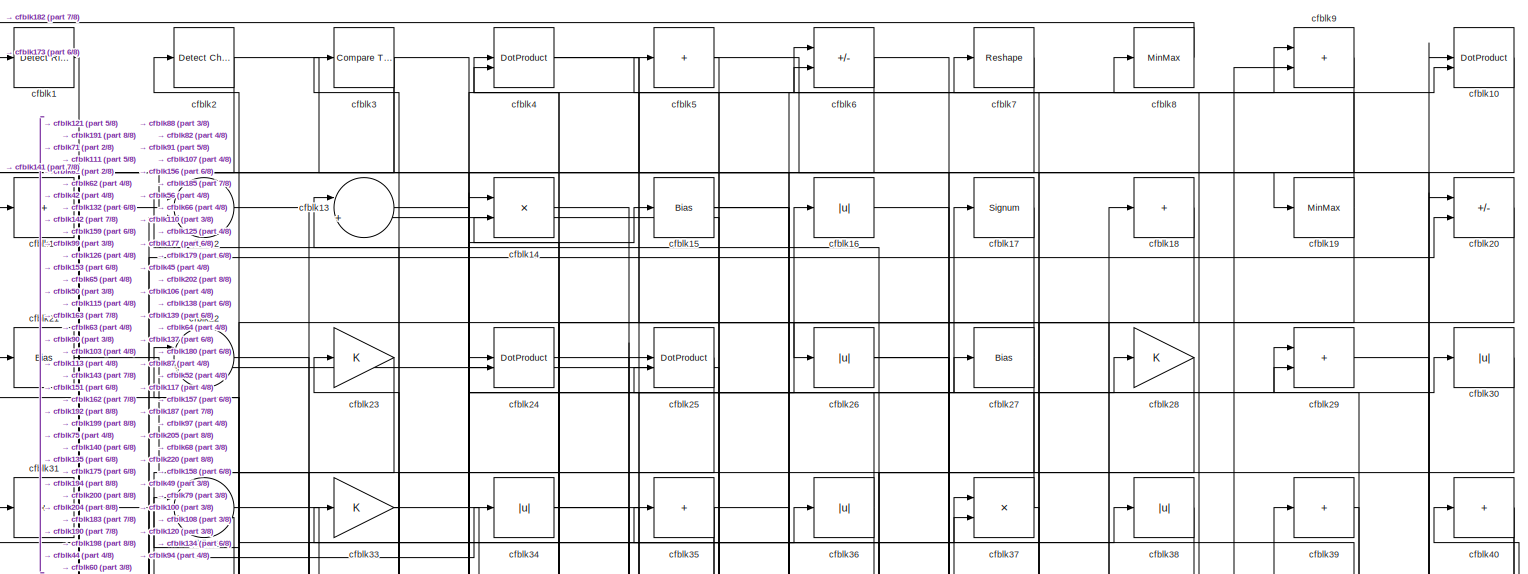
[diagram: root canvas - part 1/8, full width, top band]
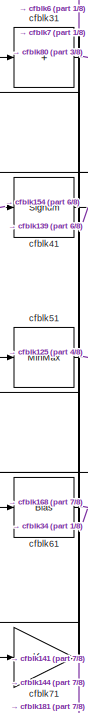
[diagram: root canvas - part 2/8, top left region]
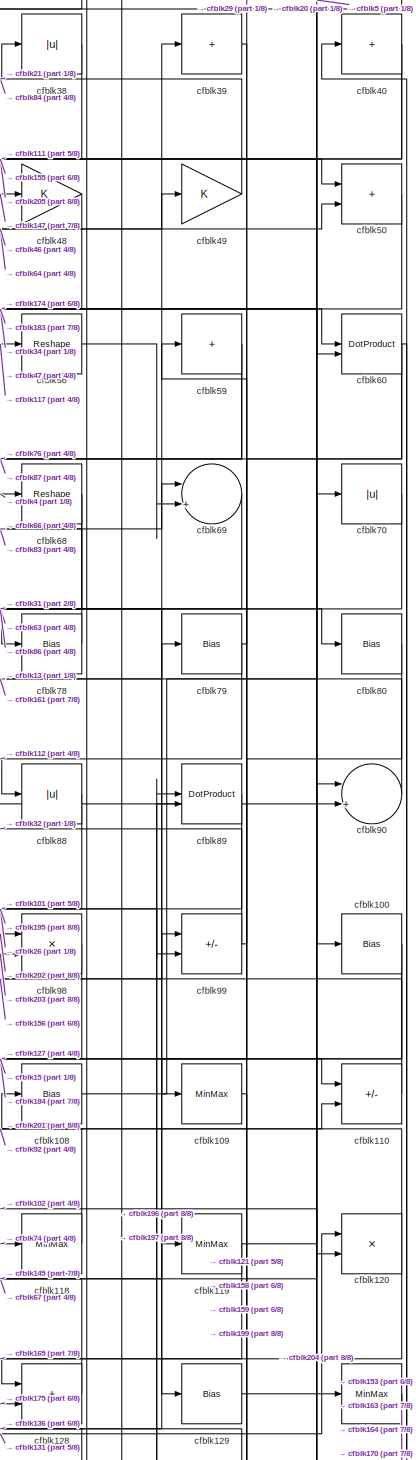
[diagram: root canvas - part 3/8, middle right region]
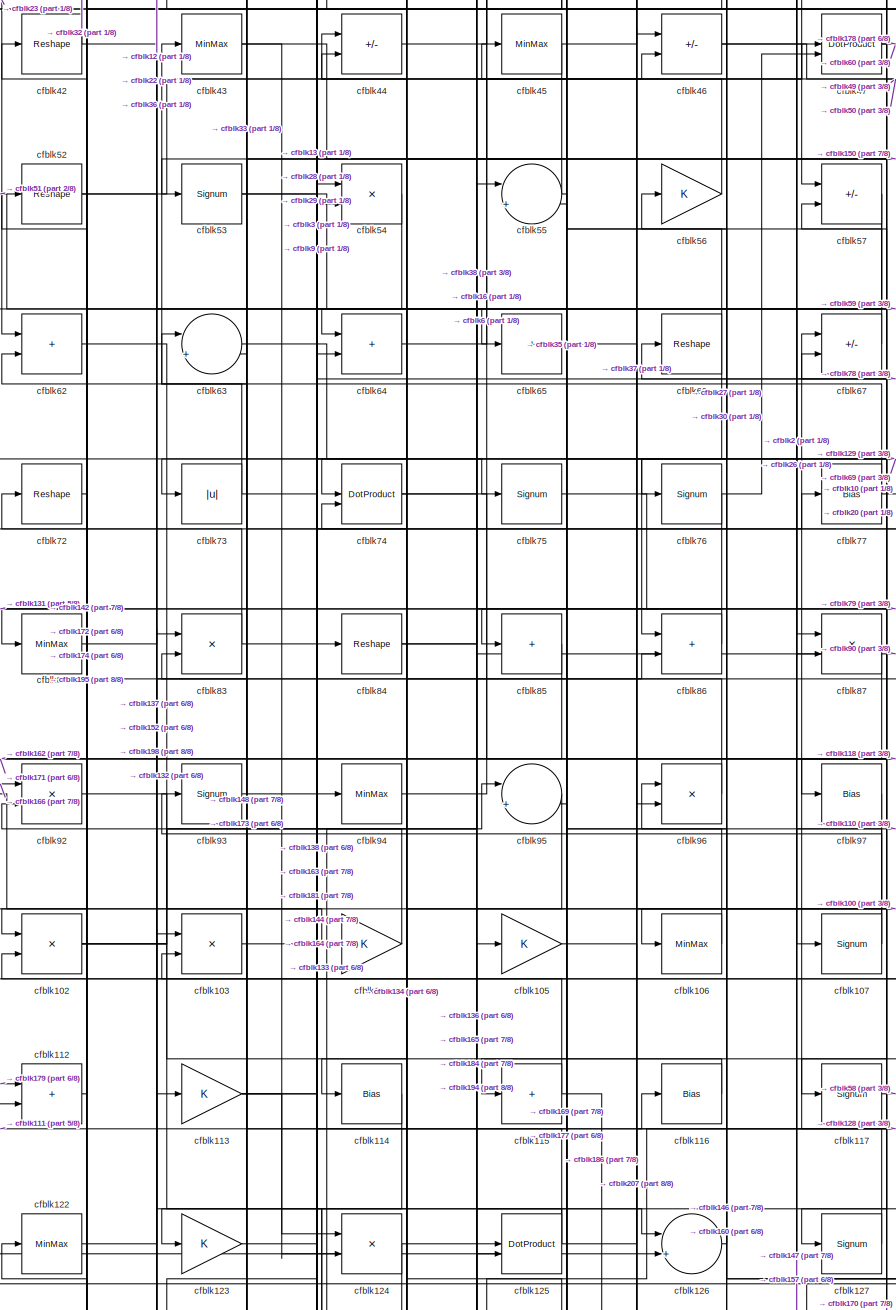
[diagram: root canvas - part 4/8, central region]
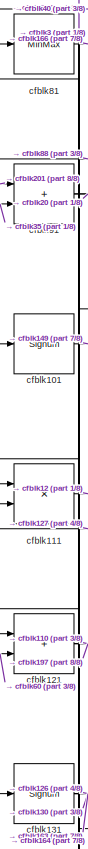
[diagram: root canvas - part 5/8, middle left region]
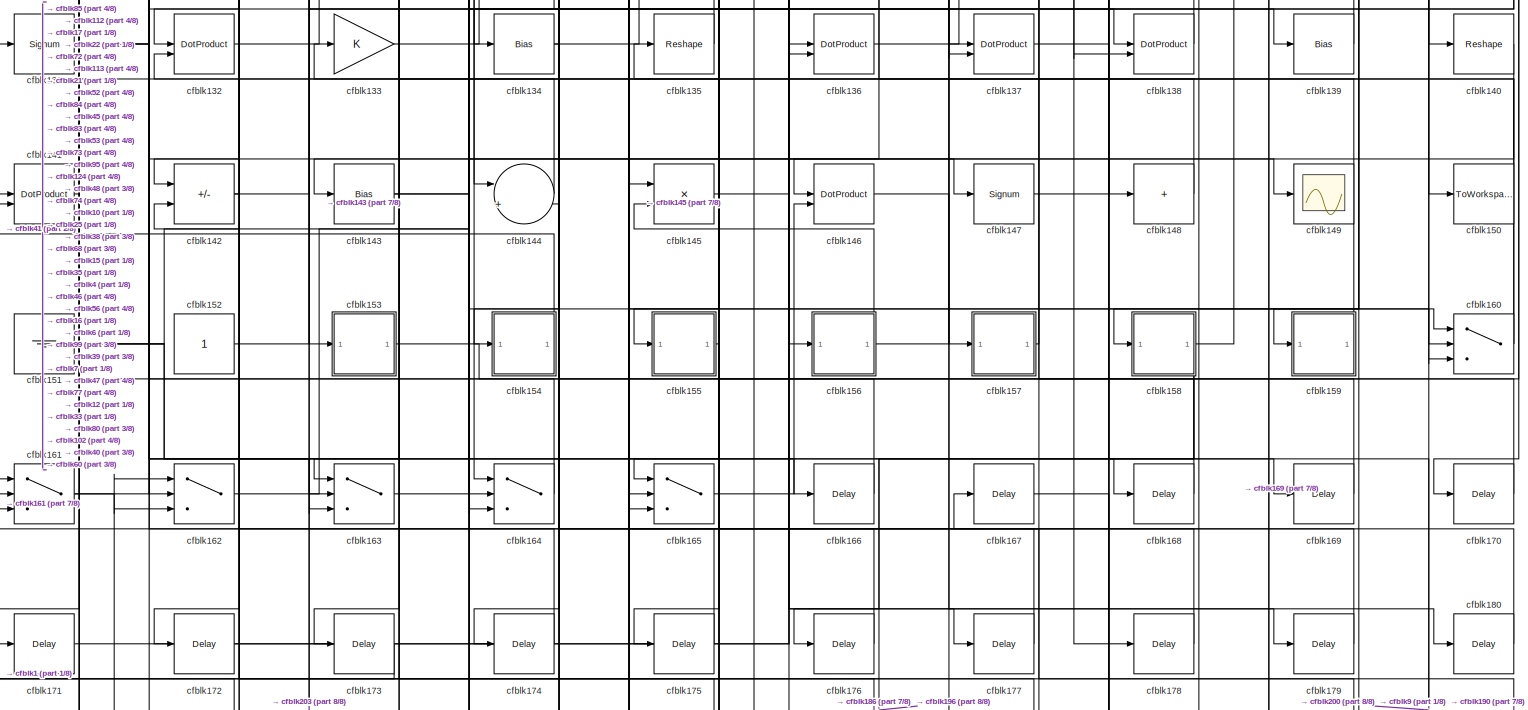
[diagram: root canvas - part 6/8, full width, bottom band]
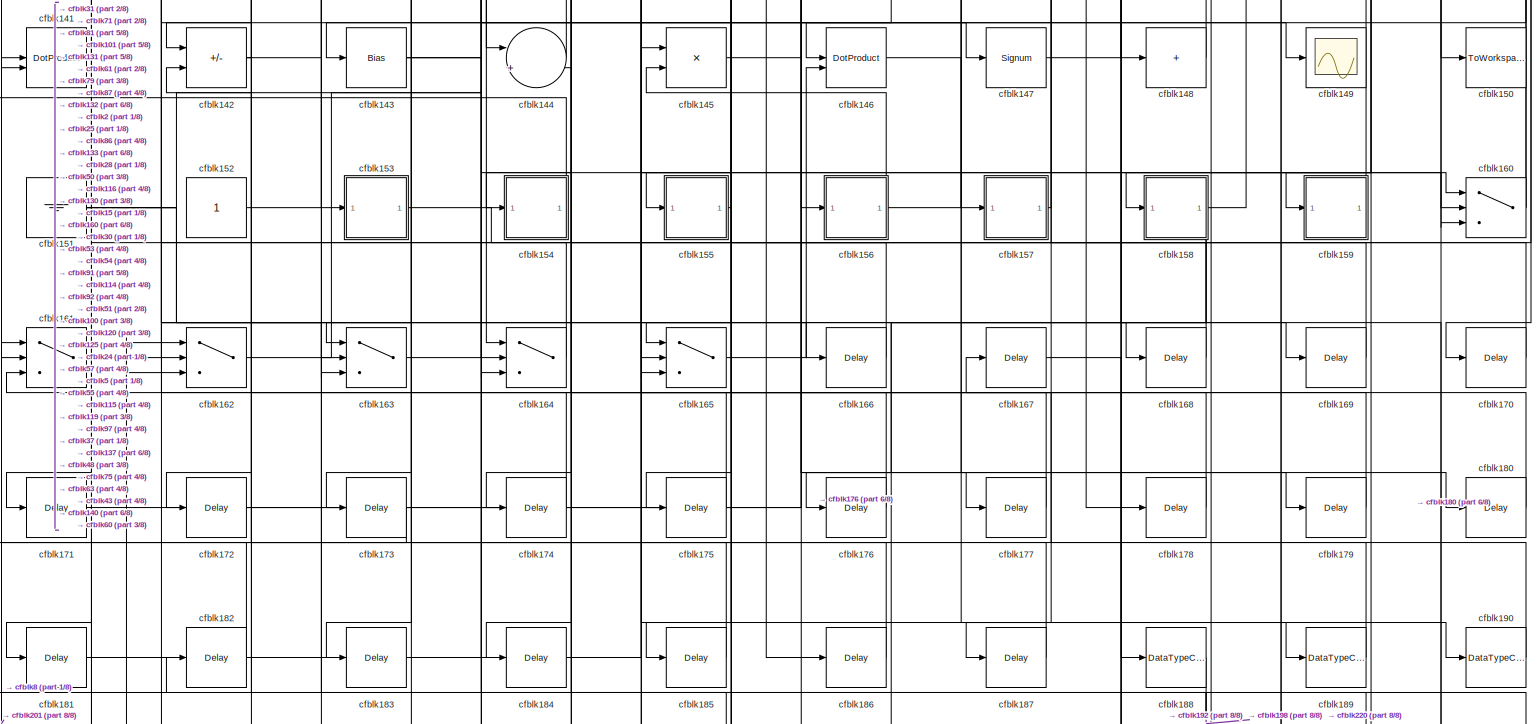
[diagram: root canvas - part 7/8, full width, bottom band]
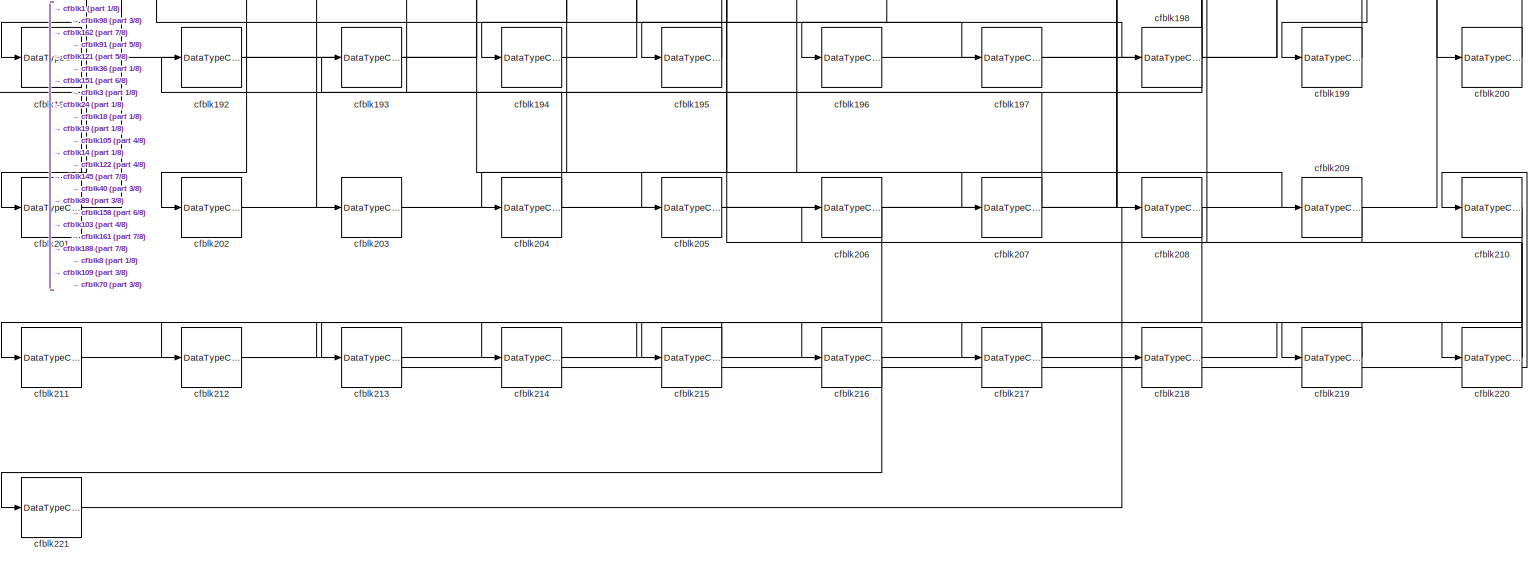
[diagram: root canvas - part 8/8, full width, bottom band]
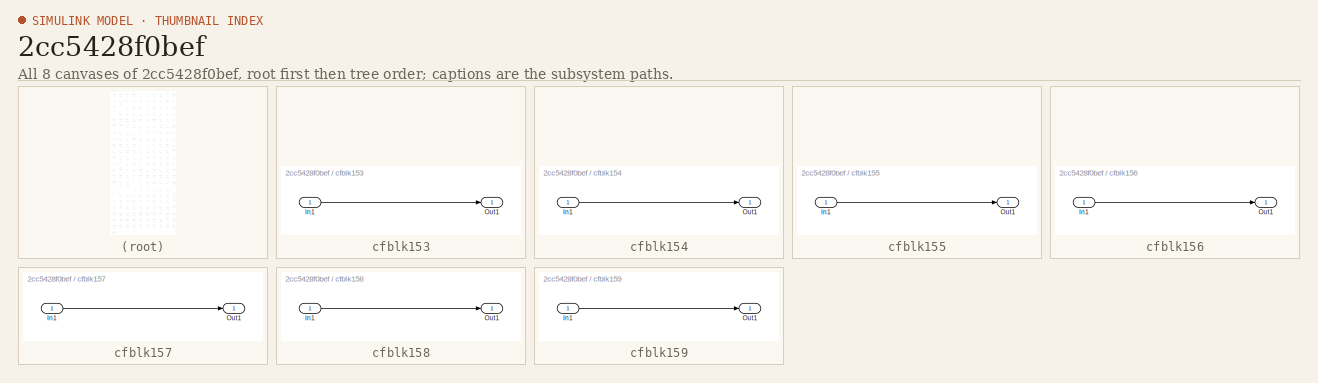
[diagram: thumbnail index - all 8 canvases of the model, root first then tree order]
MODEL slx_2cc5428f0bef
KIND model
CONFIG AbsTol = auto
CONFIG EnableMultiTasking = off
CONFIG FixedStep = auto
CONFIG MaxStep = auto
CONFIG MinStep = auto
CONFIG RelTol = 1e-3
CONFIG SampleTimeConstraint = Unconstrained
CONFIG SolverName = VariableStepAuto
CONFIG StartTime = 0.0
CONFIG StopTime = 10.0
BLOCK [Reference] cfblk1  REF=hdlsllib/Logic and Bit
Operations/Detect Rise
Positive
  SourceBlock = hdlsllib/Logic and Bit\nOperations/Detect Rise\nPositive
  SourceType = Detect Rise Positive
BLOCK [DotProduct] cfblk10
  OutDataTypeStr = Inherit: Inherit via internal rule
BLOCK [Bias] cfblk100
  Bias = 0.0
  SaturateOnIntegerOverflow = off
BLOCK [Signum] cfblk101
BLOCK [Product] cfblk102
  Inputs = */
  RndMeth = Zero
  SaturateOnIntegerOverflow = on
BLOCK [Product] cfblk103
  Inputs = */
  RndMeth = Zero
  SaturateOnIntegerOverflow = on
BLOCK [Gain] cfblk104
BLOCK [Gain] cfblk105
BLOCK [MinMax] cfblk106
BLOCK [Signum] cfblk107
BLOCK [Bias] cfblk108
  Bias = 0.0
  SaturateOnIntegerOverflow = off
BLOCK [MinMax] cfblk109
BLOCK [Sum] cfblk11
  IconShape = rectangular
  Inputs = +
BLOCK [Sum] cfblk110
  IconShape = rectangular
  Inputs = +-
BLOCK [Product] cfblk111
  Inputs = */
  RndMeth = Zero
  SaturateOnIntegerOverflow = on
BLOCK [Sum] cfblk112
  IconShape = rectangular
BLOCK [Gain] cfblk113
BLOCK [Bias] cfblk114
  Bias = 0.0
  SaturateOnIntegerOverflow = off
BLOCK [Sum] cfblk115
  IconShape = rectangular
  Inputs = +
BLOCK [Bias] cfblk116
  Bias = 0.0
  SaturateOnIntegerOverflow = off
BLOCK [Signum] cfblk117
BLOCK [MinMax] cfblk118
BLOCK [MinMax] cfblk119
BLOCK [Sum] cfblk12
  Inputs = |++
BLOCK [Product] cfblk120
  Inputs = */
  RndMeth = Zero
  SaturateOnIntegerOverflow = on
BLOCK [Sum] cfblk121
  IconShape = rectangular
BLOCK [MinMax] cfblk122
BLOCK [Gain] cfblk123
BLOCK [Product] cfblk124
  Inputs = */
  RndMeth = Zero
  SaturateOnIntegerOverflow = on
BLOCK [DotProduct] cfblk125
  OutDataTypeStr = Inherit: Inherit via internal rule
BLOCK [Sum] cfblk126
  Inputs = |++
BLOCK [Signum] cfblk127
BLOCK [Sum] cfblk128
  IconShape = rectangular
BLOCK [Bias] cfblk129
  Bias = 0.0
  SaturateOnIntegerOverflow = off
BLOCK [Sum] cfblk13
  Inputs = |++
BLOCK [MinMax] cfblk130
BLOCK [Signum] cfblk131
BLOCK [DotProduct] cfblk132
  OutDataTypeStr = Inherit: Inherit via internal rule
BLOCK [Gain] cfblk133
BLOCK [Bias] cfblk134
  Bias = 0.0
  SaturateOnIntegerOverflow = off
BLOCK [Reshape] cfblk135
BLOCK [DotProduct] cfblk136
  OutDataTypeStr = Inherit: Inherit via internal rule
BLOCK [DotProduct] cfblk137
  OutDataTypeStr = Inherit: Inherit via internal rule
BLOCK [DotProduct] cfblk138
  OutDataTypeStr = Inherit: Inherit via internal rule
BLOCK [Bias] cfblk139
  Bias = 0.0
  SaturateOnIntegerOverflow = off
BLOCK [Product] cfblk14
  Inputs = */
  RndMeth = Zero
  SaturateOnIntegerOverflow = on
BLOCK [Reshape] cfblk140
BLOCK [DotProduct] cfblk141
  OutDataTypeStr = Inherit: Inherit via internal rule
BLOCK [Sum] cfblk142
  IconShape = rectangular
  Inputs = +-
BLOCK [Bias] cfblk143
  Bias = 0.0
  SaturateOnIntegerOverflow = off
BLOCK [Sum] cfblk144
  Inputs = |++
BLOCK [Product] cfblk145
  Inputs = */
  RndMeth = Zero
  SaturateOnIntegerOverflow = on
BLOCK [DotProduct] cfblk146
  OutDataTypeStr = Inherit: Inherit via internal rule
BLOCK [Signum] cfblk147
BLOCK [Sum] cfblk148
  IconShape = rectangular
  Inputs = +
BLOCK [Scope] cfblk149
  Floating = off
  NumInputPorts = 1
  ScopeSpecificationString = Simulink.scopes.TimeScopeBlockCfg('CurrentConfiguration', extmgr.ConfigurationSet(extmgr.Configuration('Core','General UI',true),extmgr.Configuration('Core','Source UI',true),extmgr.Configuration('Sources','WiredSimulink',true,'DataLoggingVariableName','ScopeData2','DataLoggingSaveFormat','Array','DataLoggingLimitDataPoints',true,'DataLoggingDecimation','1'),extmgr.Configuration('Visuals','Time Do...<+868ch>
BLOCK [Bias] cfblk15
  Bias = 0.0
  SaturateOnIntegerOverflow = off
BLOCK [ToWorkspace] cfblk150
  MaxDataPoints = inf
  SampleTime = -1
  SaveFormat = Timeseries
  VariableName = simout
BLOCK [Ground] cfblk151
BLOCK [Constant] cfblk152
  SampleTime = -1
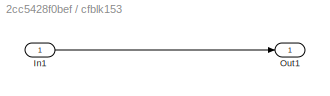
BLOCK [SubSystem] cfblk153
  LibrarySourceBlock = hdlsllib/Ports &\nSubsystems/Subsystem
BLOCK [Inport] cfblk153/In1
BLOCK [Outport] cfblk153/Out1
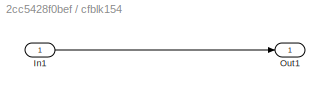
BLOCK [SubSystem] cfblk154
  LibrarySourceBlock = hdlsllib/Ports &\nSubsystems/Subsystem
BLOCK [Inport] cfblk154/In1
BLOCK [Outport] cfblk154/Out1
BLOCK [SubSystem] cfblk155
  LibrarySourceBlock = hdlsllib/Ports &\nSubsystems/Subsystem
BLOCK [Inport] cfblk155/In1
BLOCK [Outport] cfblk155/Out1
BLOCK [SubSystem] cfblk156
  LibrarySourceBlock = hdlsllib/Ports &\nSubsystems/Subsystem
BLOCK [Inport] cfblk156/In1
BLOCK [Outport] cfblk156/Out1
BLOCK [SubSystem] cfblk157
  LibrarySourceBlock = hdlsllib/Ports &\nSubsystems/Subsystem
BLOCK [Inport] cfblk157/In1
BLOCK [Outport] cfblk157/Out1
BLOCK [SubSystem] cfblk158
  LibrarySourceBlock = hdlsllib/Ports &\nSubsystems/Subsystem
BLOCK [Inport] cfblk158/In1
BLOCK [Outport] cfblk158/Out1
BLOCK [SubSystem] cfblk159
  LibrarySourceBlock = hdlsllib/Ports &\nSubsystems/Subsystem
BLOCK [Inport] cfblk159/In1
BLOCK [Outport] cfblk159/Out1
BLOCK [Abs] cfblk16
  SaturateOnIntegerOverflow = off
BLOCK [Switch] cfblk160
  InputSameDT = off
  SaturateOnIntegerOverflow = off
BLOCK [Switch] cfblk161
  InputSameDT = off
  SaturateOnIntegerOverflow = off
BLOCK [Switch] cfblk162
  InputSameDT = off
  SaturateOnIntegerOverflow = off
BLOCK [Switch] cfblk163
  InputSameDT = off
  SaturateOnIntegerOverflow = off
BLOCK [Switch] cfblk164
  InputSameDT = off
  SaturateOnIntegerOverflow = off
BLOCK [Switch] cfblk165
  InputSameDT = off
  SaturateOnIntegerOverflow = off
BLOCK [Delay] cfblk166
  InputPortMap = u0
  SampleTime = 1
BLOCK [Delay] cfblk167
  InputPortMap = u0
  SampleTime = 1
BLOCK [Delay] cfblk168
  InputPortMap = u0
  SampleTime = 1
BLOCK [Delay] cfblk169
  InputPortMap = u0
  SampleTime = 1
BLOCK [Signum] cfblk17
BLOCK [Delay] cfblk170
  InputPortMap = u0
  SampleTime = 1
BLOCK [Delay] cfblk171
  InputPortMap = u0
  SampleTime = 1
BLOCK [Delay] cfblk172
  InputPortMap = u0
  SampleTime = 1
BLOCK [Delay] cfblk173
  InputPortMap = u0
  SampleTime = 1
BLOCK [Delay] cfblk174
  InputPortMap = u0
  SampleTime = 1
BLOCK [Delay] cfblk175
  InputPortMap = u0
  SampleTime = 1
BLOCK [Delay] cfblk176
  InputPortMap = u0
  SampleTime = 1
BLOCK [Delay] cfblk177
  InputPortMap = u0
  SampleTime = 1
BLOCK [Delay] cfblk178
  InputPortMap = u0
  SampleTime = 1
BLOCK [Delay] cfblk179
  InputPortMap = u0
  SampleTime = 1
BLOCK [Sum] cfblk18
  IconShape = rectangular
  Inputs = +
BLOCK [Delay] cfblk180
  InputPortMap = u0
  SampleTime = 1
BLOCK [Delay] cfblk181
  InputPortMap = u0
  SampleTime = 1
BLOCK [Delay] cfblk182
  InputPortMap = u0
  SampleTime = 1
BLOCK [Delay] cfblk183
  InputPortMap = u0
  SampleTime = 1
BLOCK [Delay] cfblk184
  InputPortMap = u0
  SampleTime = 1
BLOCK [Delay] cfblk185
  InputPortMap = u0
  SampleTime = 1
BLOCK [Delay] cfblk186
  InputPortMap = u0
  SampleTime = 1
BLOCK [Delay] cfblk187
  InputPortMap = u0
  SampleTime = 1
BLOCK [DataTypeConversion] cfblk188
  OutDataTypeStr = uint8
  RndMeth = Floor
  SaturateOnIntegerOverflow = off
BLOCK [DataTypeConversion] cfblk189
  OutDataTypeStr = uint8
  RndMeth = Floor
  SaturateOnIntegerOverflow = off
BLOCK [MinMax] cfblk19
BLOCK [DataTypeConversion] cfblk190
  OutDataTypeStr = uint8
  RndMeth = Floor
  SaturateOnIntegerOverflow = off
BLOCK [DataTypeConversion] cfblk191
  OutDataTypeStr = uint8
  RndMeth = Floor
  SaturateOnIntegerOverflow = off
BLOCK [DataTypeConversion] cfblk192
  OutDataTypeStr = uint8
  RndMeth = Floor
  SaturateOnIntegerOverflow = off
BLOCK [DataTypeConversion] cfblk193
  RndMeth = Floor
  SaturateOnIntegerOverflow = off
BLOCK [DataTypeConversion] cfblk194
  OutDataTypeStr = uint8
  RndMeth = Floor
  SaturateOnIntegerOverflow = off
BLOCK [DataTypeConversion] cfblk195
  OutDataTypeStr = uint8
  RndMeth = Floor
  SaturateOnIntegerOverflow = off
BLOCK [DataTypeConversion] cfblk196
  OutDataTypeStr = uint8
  RndMeth = Floor
  SaturateOnIntegerOverflow = off
BLOCK [DataTypeConversion] cfblk197
  OutDataTypeStr = uint8
  RndMeth = Floor
  SaturateOnIntegerOverflow = off
BLOCK [DataTypeConversion] cfblk198
  RndMeth = Floor
  SaturateOnIntegerOverflow = off
BLOCK [DataTypeConversion] cfblk199
  OutDataTypeStr = uint8
  RndMeth = Floor
  SaturateOnIntegerOverflow = off
BLOCK [Reference] cfblk2  REF=simulink/Logic and Bit
Operations/Detect
Change
  LibrarySourceBlock = hdlsllib/Logic and Bit\nOperations/Detect\nChange
  SourceBlock = simulink/Logic and Bit\nOperations/Detect\nChange
  SourceType = Detect Change
BLOCK [Sum] cfblk20
  IconShape = rectangular
  Inputs = +-
BLOCK [DataTypeConversion] cfblk200
  OutDataTypeStr = uint8
  RndMeth = Floor
  SaturateOnIntegerOverflow = off
BLOCK [DataTypeConversion] cfblk201
  RndMeth = Floor
  SaturateOnIntegerOverflow = off
BLOCK [DataTypeConversion] cfblk202
  OutDataTypeStr = uint8
  RndMeth = Floor
  SaturateOnIntegerOverflow = off
BLOCK [DataTypeConversion] cfblk203
  OutDataTypeStr = uint8
  RndMeth = Floor
  SaturateOnIntegerOverflow = off
BLOCK [DataTypeConversion] cfblk204
  RndMeth = Floor
  SaturateOnIntegerOverflow = off
BLOCK [DataTypeConversion] cfblk205
  OutDataTypeStr = uint8
  RndMeth = Floor
  SaturateOnIntegerOverflow = off
BLOCK [DataTypeConversion] cfblk206
  RndMeth = Floor
  SaturateOnIntegerOverflow = off
BLOCK [DataTypeConversion] cfblk207
  OutDataTypeStr = uint8
  RndMeth = Floor
  SaturateOnIntegerOverflow = off
BLOCK [DataTypeConversion] cfblk208
  RndMeth = Floor
  SaturateOnIntegerOverflow = off
BLOCK [DataTypeConversion] cfblk209
  OutDataTypeStr = uint8
  RndMeth = Floor
  SaturateOnIntegerOverflow = off
BLOCK [Bias] cfblk21
  Bias = 0.0
  SaturateOnIntegerOverflow = off
BLOCK [DataTypeConversion] cfblk210
  RndMeth = Floor
  SaturateOnIntegerOverflow = off
BLOCK [DataTypeConversion] cfblk211
  OutDataTypeStr = uint8
  RndMeth = Floor
  SaturateOnIntegerOverflow = off
BLOCK [DataTypeConversion] cfblk212
  RndMeth = Floor
  SaturateOnIntegerOverflow = off
BLOCK [DataTypeConversion] cfblk213
  OutDataTypeStr = uint8
  RndMeth = Floor
  SaturateOnIntegerOverflow = off
BLOCK [DataTypeConversion] cfblk214
  RndMeth = Floor
  SaturateOnIntegerOverflow = off
BLOCK [DataTypeConversion] cfblk215
  OutDataTypeStr = uint8
  RndMeth = Floor
  SaturateOnIntegerOverflow = off
BLOCK [DataTypeConversion] cfblk216
  RndMeth = Floor
  SaturateOnIntegerOverflow = off
BLOCK [DataTypeConversion] cfblk217
  OutDataTypeStr = uint8
  RndMeth = Floor
  SaturateOnIntegerOverflow = off
BLOCK [DataTypeConversion] cfblk218
  RndMeth = Floor
  SaturateOnIntegerOverflow = off
BLOCK [DataTypeConversion] cfblk219
  OutDataTypeStr = uint8
  RndMeth = Floor
  SaturateOnIntegerOverflow = off
BLOCK [Sum] cfblk22
  Inputs = |++
BLOCK [DataTypeConversion] cfblk220
  RndMeth = Floor
  SaturateOnIntegerOverflow = off
BLOCK [DataTypeConversion] cfblk221
  OutDataTypeStr = uint8
  RndMeth = Floor
  SaturateOnIntegerOverflow = off
BLOCK [Gain] cfblk23
BLOCK [DotProduct] cfblk24
  OutDataTypeStr = Inherit: Inherit via internal rule
BLOCK [DotProduct] cfblk25
  OutDataTypeStr = Inherit: Inherit via internal rule
BLOCK [Abs] cfblk26
  SaturateOnIntegerOverflow = off
BLOCK [Bias] cfblk27
  Bias = 0.0
  SaturateOnIntegerOverflow = off
BLOCK [Gain] cfblk28
BLOCK [Sum] cfblk29
  IconShape = rectangular
BLOCK [Reference] cfblk3  REF=hdlsllib/Logic and Bit
Operations/Compare
To Zero
  SourceBlock = hdlsllib/Logic and Bit\nOperations/Compare\nTo Zero
  SourceType = Compare To Zero
BLOCK [Abs] cfblk30
  SaturateOnIntegerOverflow = off
BLOCK [Sum] cfblk31
  IconShape = rectangular
  Inputs = +
BLOCK [Sum] cfblk32
  Inputs = |++
BLOCK [Gain] cfblk33
BLOCK [Abs] cfblk34
  SaturateOnIntegerOverflow = off
BLOCK [Sum] cfblk35
  IconShape = rectangular
  Inputs = +
BLOCK [Abs] cfblk36
  SaturateOnIntegerOverflow = off
BLOCK [Product] cfblk37
  Inputs = */
  RndMeth = Zero
  SaturateOnIntegerOverflow = on
BLOCK [Abs] cfblk38
  SaturateOnIntegerOverflow = off
BLOCK [Sum] cfblk39
  IconShape = rectangular
  Inputs = +
BLOCK [DotProduct] cfblk4
  OutDataTypeStr = Inherit: Inherit via internal rule
BLOCK [Sum] cfblk40
  IconShape = rectangular
  Inputs = +
BLOCK [Signum] cfblk41
BLOCK [Reshape] cfblk42
BLOCK [MinMax] cfblk43
BLOCK [Sum] cfblk44
  IconShape = rectangular
  Inputs = +-
BLOCK [MinMax] cfblk45
BLOCK [Sum] cfblk46
  IconShape = rectangular
  Inputs = +-
BLOCK [DotProduct] cfblk47
  OutDataTypeStr = Inherit: Inherit via internal rule
BLOCK [Gain] cfblk48
BLOCK [Gain] cfblk49
BLOCK [Sum] cfblk5
  IconShape = rectangular
  Inputs = +
BLOCK [Sum] cfblk50
  IconShape = rectangular
BLOCK [MinMax] cfblk51
BLOCK [Reshape] cfblk52
BLOCK [Signum] cfblk53
BLOCK [Product] cfblk54
  Inputs = */
  RndMeth = Zero
  SaturateOnIntegerOverflow = on
BLOCK [Sum] cfblk55
  Inputs = |++
BLOCK [Gain] cfblk56
BLOCK [Sum] cfblk57
  IconShape = rectangular
  Inputs = +-
BLOCK [Reshape] cfblk58
BLOCK [Sum] cfblk59
  IconShape = rectangular
  Inputs = +
BLOCK [Sum] cfblk6
  IconShape = rectangular
  Inputs = +-
BLOCK [DotProduct] cfblk60
  OutDataTypeStr = Inherit: Inherit via internal rule
BLOCK [Bias] cfblk61
  Bias = 0.0
  SaturateOnIntegerOverflow = off
BLOCK [Sum] cfblk62
  IconShape = rectangular
BLOCK [Sum] cfblk63
  Inputs = |++
BLOCK [Sum] cfblk64
  IconShape = rectangular
BLOCK [Sum] cfblk65
  IconShape = rectangular
  Inputs = +
BLOCK [Reshape] cfblk66
BLOCK [Sum] cfblk67
  IconShape = rectangular
  Inputs = +-
BLOCK [Reshape] cfblk68
BLOCK [Sum] cfblk69
  Inputs = |++
BLOCK [Reshape] cfblk7
BLOCK [Abs] cfblk70
  SaturateOnIntegerOverflow = off
BLOCK [Gain] cfblk71
BLOCK [Reshape] cfblk72
BLOCK [Abs] cfblk73
  SaturateOnIntegerOverflow = off
BLOCK [DotProduct] cfblk74
  OutDataTypeStr = Inherit: Inherit via internal rule
BLOCK [Signum] cfblk75
BLOCK [Signum] cfblk76
BLOCK [Bias] cfblk77
  Bias = 0.0
  SaturateOnIntegerOverflow = off
BLOCK [Bias] cfblk78
  Bias = 0.0
  SaturateOnIntegerOverflow = off
BLOCK [Bias] cfblk79
  Bias = 0.0
  SaturateOnIntegerOverflow = off
BLOCK [MinMax] cfblk8
BLOCK [Bias] cfblk80
  Bias = 0.0
  SaturateOnIntegerOverflow = off
BLOCK [MinMax] cfblk81
BLOCK [MinMax] cfblk82
BLOCK [Product] cfblk83
  Inputs = */
  RndMeth = Zero
  SaturateOnIntegerOverflow = on
BLOCK [Reshape] cfblk84
BLOCK [Sum] cfblk85
  IconShape = rectangular
  Inputs = +
BLOCK [Sum] cfblk86
  IconShape = rectangular
BLOCK [Product] cfblk87
  Inputs = */
  RndMeth = Zero
  SaturateOnIntegerOverflow = on
BLOCK [Abs] cfblk88
  SaturateOnIntegerOverflow = off
BLOCK [DotProduct] cfblk89
  OutDataTypeStr = Inherit: Inherit via internal rule
BLOCK [Sum] cfblk9
  IconShape = rectangular
BLOCK [Sum] cfblk90
  Inputs = |++
BLOCK [Sum] cfblk91
  IconShape = rectangular
BLOCK [Product] cfblk92
  Inputs = */
  RndMeth = Zero
  SaturateOnIntegerOverflow = on
BLOCK [Signum] cfblk93
BLOCK [MinMax] cfblk94
BLOCK [Sum] cfblk95
  Inputs = |++
BLOCK [Product] cfblk96
  Inputs = */
  RndMeth = Zero
  SaturateOnIntegerOverflow = on
BLOCK [Bias] cfblk97
  Bias = 0.0
  SaturateOnIntegerOverflow = off
BLOCK [Product] cfblk98
  Inputs = */
  RndMeth = Zero
  SaturateOnIntegerOverflow = on
BLOCK [Sum] cfblk99
  IconShape = rectangular
  Inputs = +-
NET cfblk100:1 -> cfblk127:1, cfblk184:1
LINE cfblk101:1 -> cfblk149:1
NET cfblk102:1 -> cfblk160:2, cfblk46:2, cfblk90:2
LINE cfblk103:1 -> cfblk28:1
LINE cfblk104:1 -> cfblk42:1
LINE cfblk105:1 -> cfblk207:1
LINE cfblk106:1 -> cfblk44:1
NET cfblk107:1 -> cfblk13:2, cfblk93:1
LINE cfblk108:1 -> cfblk20:1
LINE cfblk109:1 -> cfblk199:1
LINE cfblk10:1 -> cfblk117:1
LINE cfblk110:1 -> cfblk67:2
LINE cfblk111:1 -> cfblk12:2
LINE cfblk112:1 -> cfblk52:1
NET cfblk113:1 -> cfblk124:2, cfblk27:1, cfblk29:2
LINE cfblk114:1 -> cfblk144:1
NET cfblk115:1 -> cfblk186:1, cfblk23:1
LINE cfblk116:1 -> cfblk115:1
LINE cfblk117:1 -> cfblk58:1
LINE cfblk118:1 -> cfblk92:2
NET cfblk119:1 -> cfblk128:1, cfblk90:1
LINE cfblk11:1 -> cfblk19:1
NET cfblk120:1 -> cfblk108:1, cfblk165:3
NET cfblk121:1 -> cfblk110:2, cfblk197:1
LINE cfblk122:1 -> cfblk83:1
LINE cfblk123:1 -> cfblk54:2
NET cfblk124:1 -> cfblk134:1, cfblk160:3
NET cfblk125:1 -> cfblk103:2, cfblk123:1, cfblk37:2
LINE cfblk126:1 -> cfblk96:1
LINE cfblk127:1 -> cfblk111:2
LINE cfblk128:1 -> cfblk67:1
LINE cfblk129:1 -> cfblk120:1
LINE cfblk12:1 -> cfblk126:1
NET cfblk130:1 -> cfblk163:2, cfblk164:3
NET cfblk131:1 -> cfblk126:2, cfblk130:1, cfblk163:3
LINE cfblk132:1 -> cfblk84:1
LINE cfblk133:1 -> cfblk95:1
NET cfblk134:1 -> cfblk10:1, cfblk154:1
LINE cfblk135:1 -> cfblk4:1
LINE cfblk136:1 -> cfblk39:1
LINE cfblk137:1 -> cfblk169:1
LINE cfblk138:1 -> cfblk12:1
LINE cfblk139:1 -> cfblk33:1
LINE cfblk13:1 -> cfblk94:1
LINE cfblk140:1 -> cfblk143:1
LINE cfblk141:1 -> cfblk31:1
NET cfblk142:1 -> cfblk2:1, cfblk86:2
NET cfblk143:1 -> cfblk15:1, cfblk160:1
LINE cfblk144:1 -> cfblk51:1
LINE cfblk145:1 -> cfblk119:1
LINE cfblk146:1 -> cfblk189:1
LINE cfblk147:1 -> cfblk48:1
LINE cfblk148:1 -> cfblk63:1
LINE cfblk14:1 -> cfblk198:1
NET cfblk151:1 -> cfblk200:1, cfblk203:1, cfblk9:1
LINE cfblk152:1 -> cfblk113:1
LINE cfblk153/In1:1 -> cfblk153/Out1:1
LINE cfblk153:1 -> cfblk40:1
LINE cfblk154/In1:1 -> cfblk154/Out1:1
LINE cfblk154:1 -> cfblk41:1
LINE cfblk155/In1:1 -> cfblk155/Out1:1
LINE cfblk155:1 -> cfblk135:1
LINE cfblk156/In1:1 -> cfblk156/Out1:1
NET cfblk156:1 -> cfblk25:2, cfblk99:1
LINE cfblk157/In1:1 -> cfblk157/Out1:1
LINE cfblk157:1 -> cfblk7:1
LINE cfblk158/In1:1 -> cfblk158/Out1:1
NET cfblk158:1 -> cfblk176:1, cfblk196:1, cfblk9:2
LINE cfblk159/In1:1 -> cfblk159/Out1:1
LINE cfblk159:1 -> cfblk22:1
NET cfblk15:1 -> cfblk110:1, cfblk177:1
NET cfblk160:1 -> cfblk56:1, cfblk83:2
NET cfblk161:1 -> cfblk162:3, cfblk79:1
LINE cfblk162:1 -> cfblk30:1
LINE cfblk163:1 -> cfblk116:1
LINE cfblk164:1 -> cfblk81:1
LINE cfblk165:1 -> cfblk146:2
LINE cfblk166:1 -> cfblk92:1
LINE cfblk167:1 -> cfblk188:1
LINE cfblk168:1 -> cfblk144:2
LINE cfblk169:1 -> cfblk55:2
LINE cfblk16:1 -> cfblk137:1
LINE cfblk170:1 -> cfblk57:2
LINE cfblk171:1 -> cfblk136:1
LINE cfblk172:1 -> cfblk46:1
LINE cfblk173:1 -> cfblk1:1
LINE cfblk174:1 -> cfblk102:2
LINE cfblk175:1 -> cfblk4:2
LINE cfblk176:1 -> cfblk161:3
LINE cfblk177:1 -> cfblk95:2
LINE cfblk178:1 -> cfblk74:2
LINE cfblk179:1 -> cfblk112:1
LINE cfblk17:1 -> cfblk132:1
LINE cfblk180:1 -> cfblk145:1
LINE cfblk181:1 -> cfblk54:1
LINE cfblk182:1 -> cfblk141:1
LINE cfblk183:1 -> cfblk25:1
LINE cfblk184:1 -> cfblk125:2
LINE cfblk185:1 -> cfblk142:2
LINE cfblk186:1 -> cfblk132:2
LINE cfblk187:1 -> cfblk161:2
LINE cfblk188:1 -> cfblk192:1
LINE cfblk189:1 -> cfblk167:1
LINE cfblk18:1 -> cfblk204:1
LINE cfblk190:1 -> cfblk133:1
LINE cfblk191:1 -> cfblk24:1
LINE cfblk192:1 -> cfblk24:2
LINE cfblk193:1 -> cfblk209:1
LINE cfblk194:1 -> cfblk105:1
LINE cfblk195:1 -> cfblk122:1
LINE cfblk196:1 -> cfblk89:1
LINE cfblk197:1 -> cfblk89:2
NET cfblk198:1 -> cfblk103:1, cfblk161:1
LINE cfblk199:1 -> cfblk14:1
NET cfblk19:1 -> cfblk194:1, cfblk6:2
LINE cfblk1:1 -> cfblk191:1
LINE cfblk200:1 -> cfblk14:2
NET cfblk201:1 -> cfblk162:1, cfblk91:1
LINE cfblk202:1 -> cfblk98:1
LINE cfblk203:1 -> cfblk98:2
NET cfblk204:1 -> cfblk3:1, cfblk70:1
LINE cfblk205:1 -> cfblk18:1
LINE cfblk206:1 -> cfblk211:1
LINE cfblk207:1 -> cfblk193:1
LINE cfblk208:1 -> cfblk213:1
LINE cfblk209:1 -> cfblk206:1
LINE cfblk20:1 -> cfblk97:1
LINE cfblk210:1 -> cfblk215:1
LINE cfblk211:1 -> cfblk208:1
LINE cfblk212:1 -> cfblk217:1
LINE cfblk213:1 -> cfblk210:1
LINE cfblk214:1 -> cfblk219:1
LINE cfblk215:1 -> cfblk212:1
LINE cfblk216:1 -> cfblk221:1
LINE cfblk217:1 -> cfblk214:1
LINE cfblk218:1 -> cfblk220:1
LINE cfblk219:1 -> cfblk216:1
LINE cfblk21:1 -> cfblk153:1
NET cfblk220:1 -> cfblk145:2, cfblk8:1
LINE cfblk221:1 -> cfblk218:1
LINE cfblk22:1 -> cfblk65:1
LINE cfblk23:1 -> cfblk62:1
LINE cfblk24:1 -> cfblk190:1
LINE cfblk25:1 -> cfblk142:1
NET cfblk26:1 -> cfblk87:1, cfblk99:2
NET cfblk27:1 -> cfblk106:1, cfblk26:1
LINE cfblk28:1 -> cfblk163:1
LINE cfblk29:1 -> cfblk120:2
NET cfblk2:1 -> cfblk107:1, cfblk141:2
LINE cfblk30:1 -> cfblk64:1
LINE cfblk31:1 -> cfblk80:1
LINE cfblk32:1 -> cfblk50:1
NET cfblk33:1 -> cfblk140:1, cfblk63:2
NET cfblk34:1 -> cfblk60:1, cfblk88:1
NET cfblk35:1 -> cfblk179:1, cfblk82:1, cfblk91:2
NET cfblk36:1 -> cfblk202:1, cfblk5:1
NET cfblk37:1 -> cfblk17:1, cfblk187:1
LINE cfblk38:1 -> cfblk155:1
LINE cfblk39:1 -> cfblk109:1
NET cfblk3:1 -> cfblk11:1, cfblk121:1, cfblk75:1
NET cfblk40:1 -> cfblk111:1, cfblk205:1
LINE cfblk41:1 -> cfblk139:1
NET cfblk42:1 -> cfblk32:2, cfblk36:1
NET cfblk43:1 -> cfblk124:1, cfblk150:1
LINE cfblk44:1 -> cfblk16:1
NET cfblk45:1 -> cfblk10:2, cfblk173:1
NET cfblk46:1 -> cfblk50:2, cfblk57:1
NET cfblk47:1 -> cfblk178:1, cfblk60:2
LINE cfblk48:1 -> cfblk174:1
LINE cfblk49:1 -> cfblk21:1
NET cfblk4:1 -> cfblk156:1, cfblk68:1
LINE cfblk50:1 -> cfblk183:1
LINE cfblk51:1 -> cfblk125:1
NET cfblk52:1 -> cfblk137:2, cfblk37:1
NET cfblk53:1 -> cfblk147:1, cfblk157:1
LINE cfblk54:1 -> cfblk102:1
NET cfblk55:1 -> cfblk165:1, cfblk53:1
LINE cfblk56:1 -> cfblk35:1
NET cfblk57:1 -> cfblk165:2, cfblk74:1
LINE cfblk58:1 -> cfblk69:2
NET cfblk59:1 -> cfblk76:1, cfblk87:2
NET cfblk5:1 -> cfblk100:1, cfblk185:1
NET cfblk60:1 -> cfblk121:2, cfblk159:1, cfblk170:1
NET cfblk61:1 -> cfblk168:1, cfblk34:1
LINE cfblk62:1 -> cfblk104:1
LINE cfblk63:1 -> cfblk129:1
LINE cfblk64:1 -> cfblk49:1
LINE cfblk65:1 -> cfblk96:2
NET cfblk66:1 -> cfblk22:2, cfblk73:1
LINE cfblk67:1 -> cfblk45:1
NET cfblk68:1 -> cfblk128:2, cfblk175:1
LINE cfblk69:1 -> cfblk86:1
NET cfblk6:1 -> cfblk180:1, cfblk71:1
LINE cfblk70:1 -> cfblk78:1
LINE cfblk71:1 -> cfblk181:1
LINE cfblk72:1 -> cfblk172:1
NET cfblk73:1 -> cfblk138:1, cfblk43:1
NET cfblk74:1 -> cfblk118:1, cfblk136:2
LINE cfblk75:1 -> cfblk148:1
NET cfblk76:1 -> cfblk131:1, cfblk47:2
NET cfblk77:1 -> cfblk138:2, cfblk62:2
LINE cfblk78:1 -> cfblk66:1
NET cfblk79:1 -> cfblk112:2, cfblk29:1
LINE cfblk7:1 -> cfblk61:1
LINE cfblk80:1 -> cfblk158:1
LINE cfblk81:1 -> cfblk166:1
LINE cfblk82:1 -> cfblk47:1
NET cfblk83:1 -> cfblk69:1, cfblk72:1
NET cfblk84:1 -> cfblk38:1, cfblk55:1
LINE cfblk85:1 -> cfblk171:1
LINE cfblk86:1 -> cfblk85:1
LINE cfblk87:1 -> cfblk162:2
LINE cfblk88:1 -> cfblk101:1
LINE cfblk89:1 -> cfblk195:1
LINE cfblk8:1 -> cfblk182:1
LINE cfblk90:1 -> cfblk13:1
NET cfblk91:1 -> cfblk164:2, cfblk20:2
LINE cfblk92:1 -> cfblk164:1
LINE cfblk93:1 -> cfblk77:1
LINE cfblk94:1 -> cfblk6:1
LINE cfblk95:1 -> cfblk114:1
LINE cfblk96:1 -> cfblk44:2
LINE cfblk97:1 -> cfblk146:1
LINE cfblk98:1 -> cfblk201:1
NET cfblk99:1 -> cfblk32:1, cfblk59:1
LINE cfblk9:1 -> cfblk64:2
note: NET lines group one-source signal fan-out (src -> all destinations, sorted); 1:1 wires keep LINE
